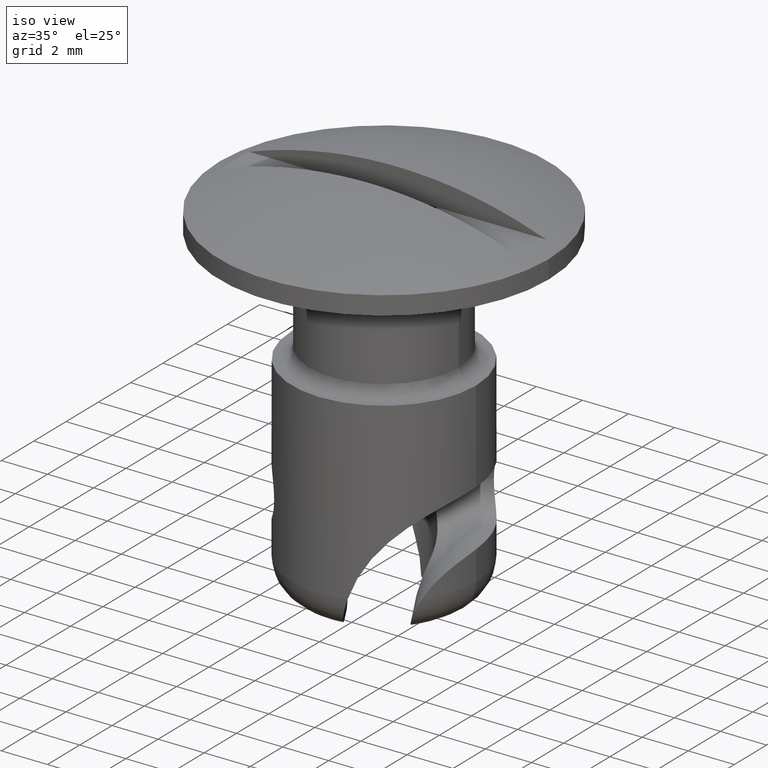
[diagram: clean part render]
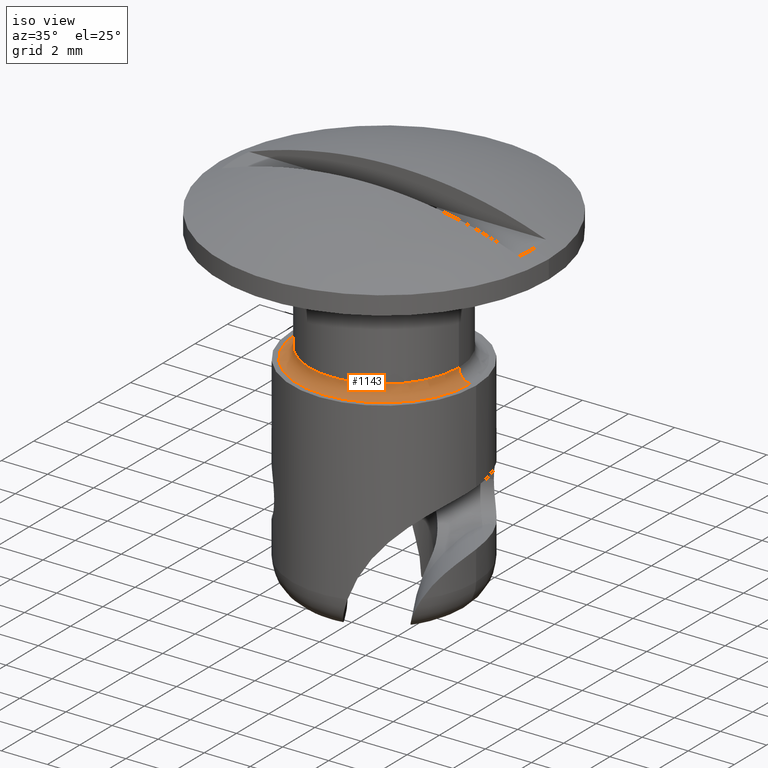
[diagram: same view with one face highlighted and labeled with its STEP entity id]
A machine part, iso view. The second image highlights one B-rep face of the part: STEP entity #1143.
In plain terms, the highlighted toroidal blend (fillet) surface has major radius 3.75 mm and minor (blend) radius 0.5 mm.
Its self-contained STEP definition (entity closure, byte-faithful):
#13 = CIRCLE ( 'NONE', #2010, 3.750000000000044900 ) ;
#23 = DIRECTION ( 'NONE',  ( -0.0000000000000000000, -0.0000000000000000000, 1.000000000000000000 ) ) ;
#50 = VERTEX_POINT ( 'NONE', #468 ) ;
#166 = CARTESIAN_POINT ( 'NONE',  ( 3.750000000000044900, 4.592425496802630200E-016, 5.644069000000000000 ) ) ;
#174 = DIRECTION ( 'NONE',  ( 0.0000000000000000000, 0.0000000000000000000, -1.000000000000000000 ) ) ;
#375 = DIRECTION ( 'NONE',  ( -1.000000000000000000, -1.224646799147353500E-016, 0.0000000000000000000 ) ) ;
#468 = CARTESIAN_POINT ( 'NONE',  ( -3.750000000000044900, 0.0000000000000000000, 5.144068999999999100 ) ) ;
#497 = CIRCLE ( 'NONE', #2544, 0.5000000000000000000 ) ;
#530 = FACE_OUTER_BOUND ( 'NONE', #2316, .T. ) ;
#553 = DIRECTION ( 'NONE',  ( 0.0000000000000000000, 0.0000000000000000000, -1.000000000000000000 ) ) ;
#890 = DIRECTION ( 'NONE',  ( -1.000000000000000000, 0.0000000000000000000, 0.0000000000000000000 ) ) ;
#955 = VERTEX_POINT ( 'NONE', #2531 ) ;
#1098 = TOROIDAL_SURFACE ( 'NONE', #2559, 3.750000000000044900, 0.5000000000000000000 ) ;
#1104 = EDGE_CURVE ( 'NONE', #2188, #1277, #1378, .T. ) ;
#1143 = ADVANCED_FACE ( 'NONE', ( #530 ), #1098, .F. ) ;
#1150 = CARTESIAN_POINT ( 'NONE',  ( -3.250000000000044900, 0.0000000000000000000, 5.644069000000000000 ) ) ;
#1264 = CARTESIAN_POINT ( 'NONE',  ( 3.250000000000044900, 3.980102097228953000E-016, 5.644069000000000000 ) ) ;
#1277 = VERTEX_POINT ( 'NONE', #1264 ) ;
#1304 = DIRECTION ( 'NONE',  ( -1.000000000000000000, 0.0000000000000000000, 0.0000000000000000000 ) ) ;
#1378 = CIRCLE ( 'NONE', #2089, 3.250000000000044900 ) ;
#1447 = DIRECTION ( 'NONE',  ( -0.0000000000000000000, -1.000000000000000000, -0.0000000000000000000 ) ) ;
#1638 = DIRECTION ( 'NONE',  ( -1.224646799147353200E-016, 1.000000000000000000, 0.0000000000000000000 ) ) ;
#1696 = EDGE_CURVE ( 'NONE', #955, #50, #13, .T. ) ;
#1770 = EDGE_CURVE ( 'NONE', #955, #1277, #497, .T. ) ;
#1818 = CARTESIAN_POINT ( 'NONE',  ( 0.0000000000000000000, 0.0000000000000000000, 5.144069000000000000 ) ) ;
#1913 = CIRCLE ( 'NONE', #2505, 0.5000000000000004400 ) ;
#2010 = AXIS2_PLACEMENT_3D ( 'NONE', #1818, #553, #2018 ) ;
#2018 = DIRECTION ( 'NONE',  ( -1.000000000000000000, 0.0000000000000000000, 0.0000000000000000000 ) ) ;
#2075 = ORIENTED_EDGE ( 'NONE', *, *, #2401, .F. ) ;
#2089 = AXIS2_PLACEMENT_3D ( 'NONE', #2317, #23, #1304 ) ;
#2170 = ORIENTED_EDGE ( 'NONE', *, *, #1696, .F. ) ;
#2188 = VERTEX_POINT ( 'NONE', #1150 ) ;
#2316 = EDGE_LOOP ( 'NONE', ( #2170, #2445, #2641, #2075 ) ) ;
#2317 = CARTESIAN_POINT ( 'NONE',  ( 0.0000000000000000000, 0.0000000000000000000, 5.644069000000000000 ) ) ;
#2330 = DIRECTION ( 'NONE',  ( 0.0000000000000000000, 0.0000000000000000000, -1.000000000000000000 ) ) ;
#2378 = CARTESIAN_POINT ( 'NONE',  ( 0.0000000000000000000, 0.0000000000000000000, 5.644069000000000000 ) ) ;
#2401 = EDGE_CURVE ( 'NONE', #50, #2188, #1913, .T. ) ;
#2445 = ORIENTED_EDGE ( 'NONE', *, *, #1770, .T. ) ;
#2505 = AXIS2_PLACEMENT_3D ( 'NONE', #2659, #1447, #174 ) ;
#2531 = CARTESIAN_POINT ( 'NONE',  ( 3.750000000000044900, 4.592425496802630200E-016, 5.144068999999999100 ) ) ;
#2544 = AXIS2_PLACEMENT_3D ( 'NONE', #166, #1638, #375 ) ;
#2559 = AXIS2_PLACEMENT_3D ( 'NONE', #2378, #2330, #890 ) ;
#2641 = ORIENTED_EDGE ( 'NONE', *, *, #1104, .F. ) ;
#2659 = CARTESIAN_POINT ( 'NONE',  ( -3.750000000000044900, 0.0000000000000000000, 5.644069000000000000 ) ) ;